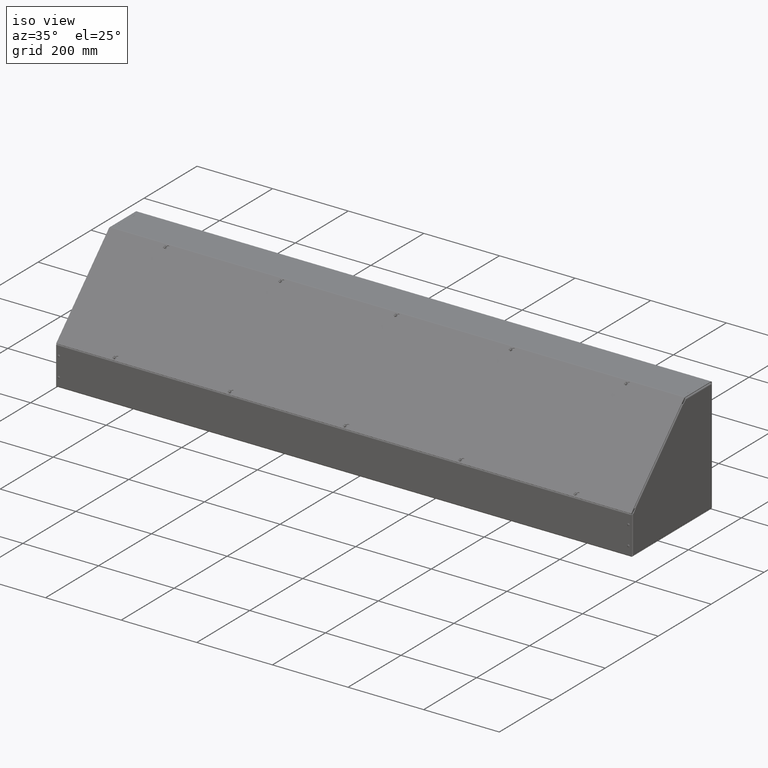
[diagram: clean part render]
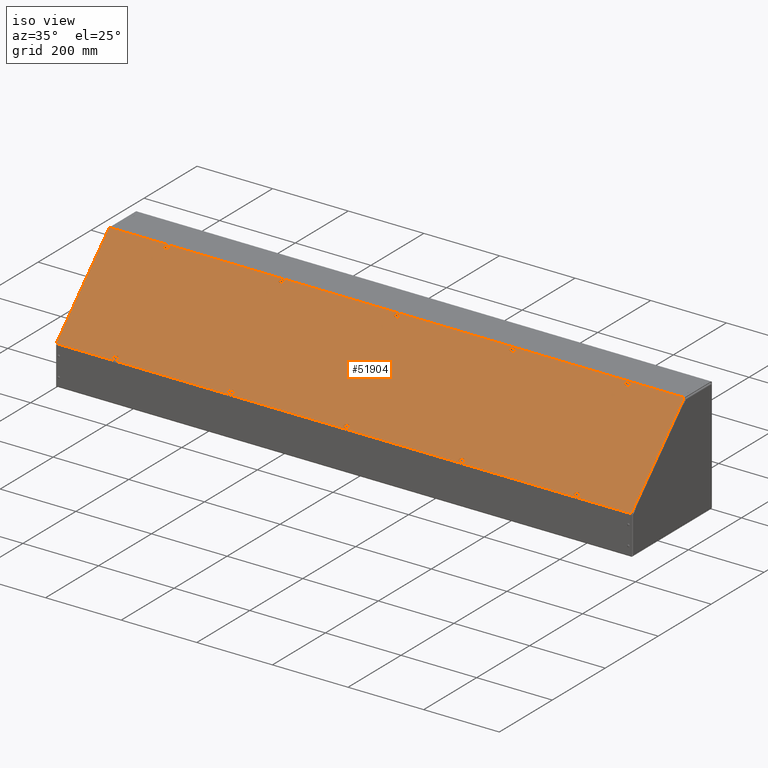
[diagram: same view with one face highlighted and labeled with its STEP entity id]
A machine part, iso view. The second image highlights one B-rep face of the part: STEP entity #51904.
In plain terms, the highlighted planar face has unit normal (-0, -0.7071, 0.7071).
Its self-contained STEP definition (entity closure, byte-faithful):
#48 = CIRCLE ( 'NONE', #75103, 0.2031250000000000000 ) ;
#491 = CARTESIAN_POINT ( 'NONE',  ( 12.06977238715531087, -5.539058563469402507, 1.295384249725091363 ) ) ;
#568 = VERTEX_POINT ( 'NONE', #69929 ) ;
#738 = CARTESIAN_POINT ( 'NONE',  ( -0.3833526128446846371, -5.461718759277108148, 1.372724053917378617 ) ) ;
#1892 = CARTESIAN_POINT ( 'NONE',  ( -12.30451591206507089, -5.616398367661648017, 1.218044445532832531 ) ) ;
#2135 = CARTESIAN_POINT ( 'NONE',  ( 11.69548408793492023, 1.896611182445426591, 8.731053995639825871 ) ) ;
#2218 = DIRECTION ( 'NONE',  ( 1.000000000000000000, 0.000000000000000000, 0.000000000000000000 ) ) ;
#2468 = CARTESIAN_POINT ( 'NONE',  ( -0.3045159120650409723, 1.896611182445442578, 8.731053995639834753 ) ) ;
#2536 = PLANE ( 'NONE',  #4278 ) ;
#2540 = LINE ( 'NONE', #69848, #107956 ) ;
#2823 = CARTESIAN_POINT ( 'NONE',  ( -0.4927276128446778092, 1.973950986637722060, 8.808393799832114013 ) ) ;
#3194 = DIRECTION ( 'NONE',  ( -1.000000000000000000, 0.000000000000000000, 0.000000000000000000 ) ) ;
#3256 = VERTEX_POINT ( 'NONE', #71480 ) ;
#3453 = LINE ( 'NONE', #71870, #71434 ) ;
#3525 = VERTEX_POINT ( 'NONE', #11920 ) ;
#4278 = AXIS2_PLACEMENT_3D ( 'NONE', #104416, #70977, #71512 ) ;
#4302 = CARTESIAN_POINT ( 'NONE',  ( -24.13335261284468558, -5.539058563469347440, 1.295384249725127557 ) ) ;
#4389 = ORIENTED_EDGE ( 'NONE', *, *, #64309, .T. ) ;
#4579 = DIRECTION ( 'NONE',  ( 3.660470676018199903E-16, 0.7071067811865430208, -0.7071067811865520136 ) ) ;
#4711 = VECTOR ( 'NONE', #23132, 39.37007874015748143 ) ;
#4789 = DIRECTION ( 'NONE',  ( 3.660470676018199903E-16, 0.7071067811865430208, -0.7071067811865520136 ) ) ;
#4916 = CARTESIAN_POINT ( 'NONE',  ( -0.3045159120650421936, 1.896611182445442578, 8.731053995639834753 ) ) ;
#5077 = EDGE_CURVE ( 'NONE', #29153, #53612, #103840, .T. ) ;
#5380 = CIRCLE ( 'NONE', #25021, 0.1093749999999986122 ) ;
#5490 = CARTESIAN_POINT ( 'NONE',  ( -12.13335261284468913, -5.539058563469370533, 1.295384249725110459 ) ) ;
#5494 = EDGE_CURVE ( 'NONE', #43933, #86162, #86589, .T. ) ;
#5627 = DIRECTION ( 'NONE',  ( 1.000000000000000000, 0.000000000000000000, 0.000000000000000000 ) ) ;
#5962 = EDGE_CURVE ( 'NONE', #98518, #10852, #71135, .T. ) ;
#6040 = VERTEX_POINT ( 'NONE', #51159 ) ;
#6110 = VERTEX_POINT ( 'NONE', #76613 ) ;
#6453 = CARTESIAN_POINT ( 'NONE',  ( 29.55414738715531087, -5.737932345678103729, 1.096510467516401022 ) ) ;
#6630 = EDGE_CURVE ( 'NONE', #47840, #6110, #84508, .T. ) ;
#6721 = CARTESIAN_POINT ( 'NONE',  ( 23.69548408793491134, -5.461718759277138346, 1.372724053917359965 ) ) ;
#6930 = VERTEX_POINT ( 'NONE', #58691 ) ;
#7148 = ORIENTED_EDGE ( 'NONE', *, *, #60162, .T. ) ;
#7261 = AXIS2_PLACEMENT_3D ( 'NONE', #89559, #38143, #19627 ) ;
#7280 = ORIENTED_EDGE ( 'NONE', *, *, #38841, .T. ) ;
#7681 = DIRECTION ( 'NONE',  ( -1.000000000000000000, 0.000000000000000000, 0.000000000000000000 ) ) ;
#7691 = DIRECTION ( 'NONE',  ( 3.660470676018199903E-16, 0.7071067811865430208, -0.7071067811865520136 ) ) ;
#7824 = VERTEX_POINT ( 'NONE', #31665 ) ;
#7967 = DIRECTION ( 'NONE',  ( -1.000000000000000000, 1.344909781496246912E-15, 0.000000000000000000 ) ) ;
#8057 = DIRECTION ( 'NONE',  ( 1.000000000000000000, -5.379639125985046023E-15, -5.379639125985046023E-15 ) ) ;
#8310 = DIRECTION ( 'NONE',  ( -1.000000000000000000, 1.344909781496261506E-15, 0.000000000000000000 ) ) ;
#8372 = CARTESIAN_POINT ( 'NONE',  ( 23.61664738715531797, 2.051290790829970678, 8.885733604024371957 ) ) ;
#8469 = DIRECTION ( 'NONE',  ( -1.000000000000000000, 0.000000000000000000, 0.000000000000000000 ) ) ;
#8722 = CARTESIAN_POINT ( 'NONE',  ( -0.3045159120650479667, -5.461718759277108148, 1.372724053917378617 ) ) ;
#8859 = CARTESIAN_POINT ( 'NONE',  ( -12.38335261284467848, 1.973950986637738048, 8.808393799832122895 ) ) ;
#8959 = DIRECTION ( 'NONE',  ( -1.000000000000000000, 0.000000000000000000, 0.000000000000000000 ) ) ;
#9019 = EDGE_CURVE ( 'NONE', #58988, #83399, #78856, .T. ) ;
#9497 = EDGE_CURVE ( 'NONE', #64758, #65760, #62072, .T. ) ;
#9529 = EDGE_CURVE ( 'NONE', #3525, #58988, #81598, .T. ) ;
#9946 = CARTESIAN_POINT ( 'NONE',  ( -24.30451591206508866, -5.461718759277068180, 1.372724053917405485 ) ) ;
#10043 = LINE ( 'NONE', #44248, #43904 ) ;
#10120 = VECTOR ( 'NONE', #82312, 39.37007874015748143 ) ;
#10694 = EDGE_CURVE ( 'NONE', #83130, #51317, #2540, .T. ) ;
#10759 = CIRCLE ( 'NONE', #105488, 0.2031250000000000000 ) ;
#10852 = VERTEX_POINT ( 'NONE', #56899 ) ;
#11351 = AXIS2_PLACEMENT_3D ( 'NONE', #93336, #43060, #101234 ) ;
#11601 = VECTOR ( 'NONE', #43364, 39.37007874015748143 ) ;
#11651 = CARTESIAN_POINT ( 'NONE',  ( -24.30451591206507800, 1.896611182445474331, 8.731053995639854293 ) ) ;
#11862 = CARTESIAN_POINT ( 'NONE',  ( -30.32085261284468558, -5.737932345678068202, 1.096510467516405907 ) ) ;
#11920 = CARTESIAN_POINT ( 'NONE',  ( -24.30451591206506023, 1.896611182445474331, 8.731053995639854293 ) ) ;
#12661 = DIRECTION ( 'NONE',  ( -1.000000000000000000, 1.344909781496261506E-15, 0.000000000000000000 ) ) ;
#13715 = CIRCLE ( 'NONE', #54846, 0.1093749999999999722 ) ;
#14122 = DIRECTION ( 'NONE',  ( 1.000000000000000000, -7.162930641981339240E-16, -1.986243367287331030E-16 ) ) ;
#14409 = ORIENTED_EDGE ( 'NONE', *, *, #41814, .F. ) ;
#14448 = ORIENTED_EDGE ( 'NONE', *, *, #93354, .F. ) ;
#14591 = DIRECTION ( 'NONE',  ( -1.000000000000000000, 7.162930641981339240E-16, 1.986243367287331030E-16 ) ) ;
#14633 = AXIS2_PLACEMENT_3D ( 'NONE', #100814, #50496, #8469 ) ;
#14795 = CARTESIAN_POINT ( 'NONE',  ( -12.38335261284467848, 2.051290790830016864, 8.885733604024400378 ) ) ;
#14982 = AXIS2_PLACEMENT_3D ( 'NONE', #57463, #4789, #12661 ) ;
#15824 = CARTESIAN_POINT ( 'NONE',  ( -24.49272761284467492, 1.973950986637753147, 8.808393799832131776 ) ) ;
#16071 = FACE_BOUND ( 'NONE', #91382, .T. ) ;
#16239 = CIRCLE ( 'NONE', #18061, 0.2031250000000008604 ) ;
#16243 = ORIENTED_EDGE ( 'NONE', *, *, #6630, .T. ) ;
#16625 = FACE_BOUND ( 'NONE', #54751, .T. ) ;
#16861 = CARTESIAN_POINT ( 'NONE',  ( -11.93022761284468913, -5.539058563469370533, 1.295384249725110459 ) ) ;
#16968 = CIRCLE ( 'NONE', #29526, 0.2031249999999986677 ) ;
#17528 = DIRECTION ( 'NONE',  ( -1.000000000000000000, 0.000000000000000000, 0.000000000000000000 ) ) ;
#17714 = DIRECTION ( 'NONE',  ( 1.000000000000000000, -7.162930641981339240E-16, -1.986243367287331030E-16 ) ) ;
#17835 = DIRECTION ( 'NONE',  ( 1.000000000000000000, -7.162930641981339240E-16, -1.986243367287331030E-16 ) ) ;
#18061 = AXIS2_PLACEMENT_3D ( 'NONE', #110574, #32269, #23291 ) ;
#18206 = DIRECTION ( 'NONE',  ( 3.660470676018199903E-16, 0.7071067811865430208, -0.7071067811865520136 ) ) ;
#18370 = EDGE_CURVE ( 'NONE', #105975, #73744, #82416, .T. ) ;
#18428 = ORIENTED_EDGE ( 'NONE', *, *, #25028, .T. ) ;
#18599 = CARTESIAN_POINT ( 'NONE',  ( -0.1333526128446756442, 1.973950986637722060, 8.808393799832114013 ) ) ;
#18831 = EDGE_CURVE ( 'NONE', #24332, #51317, #98606, .T. ) ;
#18902 = CARTESIAN_POINT ( 'NONE',  ( -12.30451591206507089, -5.461718759277090385, 1.372724053917388387 ) ) ;
#19370 = VERTEX_POINT ( 'NONE', #491 ) ;
#19486 = CARTESIAN_POINT ( 'NONE',  ( 11.61664738715531797, 1.973950986637706739, 8.808393799832105131 ) ) ;
#19608 = DIRECTION ( 'NONE',  ( 1.000000000000000000, -5.379639125985046023E-15, -5.379639125985046023E-15 ) ) ;
#19627 = DIRECTION ( 'NONE',  ( 1.000000000000000000, 0.000000000000000000, 0.000000000000000000 ) ) ;
#20215 = ORIENTED_EDGE ( 'NONE', *, *, #60519, .T. ) ;
#20346 = EDGE_CURVE ( 'NONE', #83399, #98826, #48650, .T. ) ;
#20421 = FACE_BOUND ( 'NONE', #76073, .T. ) ;
#20423 = ORIENTED_EDGE ( 'NONE', *, *, #18831, .T. ) ;
#20491 = EDGE_CURVE ( 'NONE', #65630, #3256, #21799, .T. ) ;
#21051 = DIRECTION ( 'NONE',  ( 1.000000000000000000, -7.162930641981339240E-16, -1.986243367287331030E-16 ) ) ;
#21168 = ORIENTED_EDGE ( 'NONE', *, *, #10694, .F. ) ;
#21479 = EDGE_CURVE ( 'NONE', #48153, #65630, #88357, .T. ) ;
#21746 = EDGE_CURVE ( 'NONE', #65602, #69655, #27013, .T. ) ;
#21799 = LINE ( 'NONE', #48192, #55930 ) ;
#22359 = VERTEX_POINT ( 'NONE', #94873 ) ;
#22800 = VERTEX_POINT ( 'NONE', #78744 ) ;
#22881 = EDGE_CURVE ( 'NONE', #22800, #82640, #33986, .T. ) ;
#23132 = DIRECTION ( 'NONE',  ( 1.000000000000000000, -5.345915056832844954E-16, -1.692277821388596705E-17 ) ) ;
#23157 = CARTESIAN_POINT ( 'NONE',  ( -12.30451591206506201, 1.896611182445458343, 8.731053995639843635 ) ) ;
#23291 = DIRECTION ( 'NONE',  ( 1.000000000000000000, 0.000000000000000000, -1.344909781496246912E-15 ) ) ;
#23354 = CARTESIAN_POINT ( 'NONE',  ( 11.50727238715531797, 1.973950986637706739, 8.808393799832105131 ) ) ;
#23430 = CIRCLE ( 'NONE', #98497, 0.2031250000000008604 ) ;
#23457 = LINE ( 'NONE', #91744, #10120 ) ;
#23474 = ORIENTED_EDGE ( 'NONE', *, *, #41838, .T. ) ;
#23873 = VECTOR ( 'NONE', #57425, 39.37007874015748143 ) ;
#24150 = CIRCLE ( 'NONE', #99225, 0.1093749999999986122 ) ;
#24208 = ORIENTED_EDGE ( 'NONE', *, *, #25124, .T. ) ;
#24332 = VERTEX_POINT ( 'NONE', #30825 ) ;
#24442 = VERTEX_POINT ( 'NONE', #108061 ) ;
#24529 = CARTESIAN_POINT ( 'NONE',  ( -24.13335261284467848, 1.973950986637753147, 8.808393799832131776 ) ) ;
#24571 = CARTESIAN_POINT ( 'NONE',  ( -24.38335261284467492, 1.896611182445474331, 8.731053995639854293 ) ) ;
#24671 = EDGE_CURVE ( 'NONE', #73744, #78848, #73948, .T. ) ;
#24990 = EDGE_LOOP ( 'NONE', ( #73040, #38320, #104484, #30809 ) ) ;
#25021 = AXIS2_PLACEMENT_3D ( 'NONE', #73007, #4579, #39384 ) ;
#25028 = EDGE_CURVE ( 'NONE', #82640, #40484, #70441, .T. ) ;
#25124 = EDGE_CURVE ( 'NONE', #58628, #86248, #31022, .T. ) ;
#25275 = ORIENTED_EDGE ( 'NONE', *, *, #73922, .T. ) ;
#25314 = ORIENTED_EDGE ( 'NONE', *, *, #44583, .F. ) ;
#25327 = VECTOR ( 'NONE', #17835, 39.37007874015748143 ) ;
#25628 = DIRECTION ( 'NONE',  ( -1.000000000000000000, 0.000000000000000000, 0.000000000000000000 ) ) ;
#25874 = CARTESIAN_POINT ( 'NONE',  ( 23.61664738715531797, 1.973950986637691418, 8.808393799832094473 ) ) ;
#26260 = CARTESIAN_POINT ( 'NONE',  ( -12.38335261284467848, 1.973950986637738048, 8.808393799832122895 ) ) ;
#26884 = ORIENTED_EDGE ( 'NONE', *, *, #77143, .T. ) ;
#27013 = LINE ( 'NONE', #62350, #11601 ) ;
#27163 = CARTESIAN_POINT ( 'NONE',  ( 11.61664738715531797, 1.896611182445426591, 8.731053995639825871 ) ) ;
#27435 = DIRECTION ( 'NONE',  ( 3.660470676018199903E-16, 0.7071067811865430208, -0.7071067811865520136 ) ) ;
#27866 = VECTOR ( 'NONE', #79276, 39.37007874015748143 ) ;
#28187 = LINE ( 'NONE', #62386, #53791 ) ;
#28196 = ORIENTED_EDGE ( 'NONE', *, *, #5494, .F. ) ;
#28273 = CARTESIAN_POINT ( 'NONE',  ( -0.3833526128446848036, -5.616398367661664892, 1.218044445532822762 ) ) ;
#28412 = DIRECTION ( 'NONE',  ( 1.000000000000000000, 0.000000000000000000, -1.344909781496261506E-15 ) ) ;
#28421 = DIRECTION ( 'NONE',  ( -1.000000000000000000, 7.162930641981339240E-16, 1.986243367287331030E-16 ) ) ;
#28872 = VERTEX_POINT ( 'NONE', #77751 ) ;
#28898 = LINE ( 'NONE', #61437, #97916 ) ;
#28932 = AXIS2_PLACEMENT_3D ( 'NONE', #4302, #38546, #28412 ) ;
#29153 = VERTEX_POINT ( 'NONE', #27163 ) ;
#29526 = AXIS2_PLACEMENT_3D ( 'NONE', #50241, #92660, #33953 ) ;
#29527 = CIRCLE ( 'NONE', #72523, 0.1093749999999999722 ) ;
#29534 = DIRECTION ( 'NONE',  ( 3.660470676018199903E-16, 0.7071067811865430208, -0.7071067811865520136 ) ) ;
#29958 = AXIS2_PLACEMENT_3D ( 'NONE', #26260, #50427, #76716 ) ;
#29989 = EDGE_LOOP ( 'NONE', ( #70968, #70199, #14448, #83909, #25275 ) ) ;
#30500 = CARTESIAN_POINT ( 'NONE',  ( 11.69548408793491134, -5.461718759277123247, 1.372724053917369291 ) ) ;
#30809 = ORIENTED_EDGE ( 'NONE', *, *, #100468, .F. ) ;
#30825 = CARTESIAN_POINT ( 'NONE',  ( -23.93022761284468558, -5.539058563469347440, 1.295384249725127557 ) ) ;
#30874 = VECTOR ( 'NONE', #96967, 39.37007874015748143 ) ;
#30887 = DIRECTION ( 'NONE',  ( -1.000000000000000000, 0.000000000000000000, 0.000000000000000000 ) ) ;
#31022 = CIRCLE ( 'NONE', #104291, 0.1093750000000007910 ) ;
#31115 = VERTEX_POINT ( 'NONE', #63262 ) ;
#31421 = DIRECTION ( 'NONE',  ( 3.660470676018199903E-16, 0.7071067811865430208, -0.7071067811865520136 ) ) ;
#31665 = CARTESIAN_POINT ( 'NONE',  ( 23.69548408793492911, -5.616398367661696867, 1.218044445532804110 ) ) ;
#32049 = ORIENTED_EDGE ( 'NONE', *, *, #51646, .T. ) ;
#32269 = DIRECTION ( 'NONE',  ( 3.660470676018199903E-16, 0.7071067811865430208, -0.7071067811865520136 ) ) ;
#33415 = FACE_BOUND ( 'NONE', #85656, .T. ) ;
#33459 = ORIENTED_EDGE ( 'NONE', *, *, #18370, .T. ) ;
#33928 = CARTESIAN_POINT ( 'NONE',  ( -12.13335261284468913, -5.539058563469370533, 1.295384249725110459 ) ) ;
#33953 = DIRECTION ( 'NONE',  ( 1.000000000000000000, 0.000000000000000000, -1.344909781496261506E-15 ) ) ;
#33986 = LINE ( 'NONE', #70988, #27866 ) ;
#34111 = EDGE_LOOP ( 'NONE', ( #14409, #46053, #58837, #23474, #26884 ) ) ;
#34293 = VECTOR ( 'NONE', #44153, 39.37007874015748143 ) ;
#34423 = AXIS2_PLACEMENT_3D ( 'NONE', #63778, #80551, #106223 ) ;
#34987 = CIRCLE ( 'NONE', #45707, 0.1093749999999986122 ) ;
#35208 = CARTESIAN_POINT ( 'NONE',  ( 11.61664738715530909, -5.616398367661680879, 1.218044445532813436 ) ) ;
#35385 = ORIENTED_EDGE ( 'NONE', *, *, #57271, .T. ) ;
#36633 = LINE ( 'NONE', #77507, #30874 ) ;
#37354 = VERTEX_POINT ( 'NONE', #43029 ) ;
#37888 = VECTOR ( 'NONE', #28421, 39.37007874015748143 ) ;
#38103 = DIRECTION ( 'NONE',  ( -1.000000000000000000, 0.000000000000000000, 0.000000000000000000 ) ) ;
#38143 = DIRECTION ( 'NONE',  ( 3.660470676018199903E-16, 0.7071067811865430208, -0.7071067811865520136 ) ) ;
#38317 = ORIENTED_EDGE ( 'NONE', *, *, #9529, .T. ) ;
#38320 = ORIENTED_EDGE ( 'NONE', *, *, #104422, .F. ) ;
#38396 = EDGE_CURVE ( 'NONE', #52071, #77815, #29527, .T. ) ;
#38546 = DIRECTION ( 'NONE',  ( 3.660470676018199903E-16, 0.7071067811865430208, -0.7071067811865520136 ) ) ;
#38566 = ORIENTED_EDGE ( 'NONE', *, *, #5962, .T. ) ;
#38841 = EDGE_CURVE ( 'NONE', #10852, #47840, #34987, .T. ) ;
#39118 = CARTESIAN_POINT ( 'NONE',  ( 29.55414738715530731, -5.737932345678108170, 1.096510467516397247 ) ) ;
#39209 = ORIENTED_EDGE ( 'NONE', *, *, #106814, .T. ) ;
#39384 = DIRECTION ( 'NONE',  ( 1.000000000000000000, 0.000000000000000000, 0.000000000000000000 ) ) ;
#39450 = VECTOR ( 'NONE', #14122, 39.37007874015748143 ) ;
#40290 = DIRECTION ( 'NONE',  ( 3.660470676018199903E-16, 0.7071067811865430208, -0.7071067811865520136 ) ) ;
#40484 = VERTEX_POINT ( 'NONE', #2468 ) ;
#40697 = DIRECTION ( 'NONE',  ( -1.000000000000000000, 6.171831231900343164E-16, 9.951439572063472796E-17 ) ) ;
#40847 = AXIS2_PLACEMENT_3D ( 'NONE', #61645, #104671, #19608 ) ;
#41563 = CIRCLE ( 'NONE', #34423, 0.2031250000000008604 ) ;
#41814 = EDGE_CURVE ( 'NONE', #31115, #81118, #61925, .T. ) ;
#41838 = EDGE_CURVE ( 'NONE', #102885, #568, #48, .T. ) ;
#41937 = DIRECTION ( 'NONE',  ( 1.000000000000000000, 0.000000000000000000, -1.344909781496246912E-15 ) ) ;
#42005 = ORIENTED_EDGE ( 'NONE', *, *, #47174, .T. ) ;
#42129 = ORIENTED_EDGE ( 'NONE', *, *, #49215, .T. ) ;
#42171 = ORIENTED_EDGE ( 'NONE', *, *, #9497, .F. ) ;
#42539 = DIRECTION ( 'NONE',  ( 3.660470676018199903E-16, 0.7071067811865430208, -0.7071067811865520136 ) ) ;
#42562 = EDGE_CURVE ( 'NONE', #24442, #72624, #23430, .T. ) ;
#42769 = VERTEX_POINT ( 'NONE', #738 ) ;
#43029 = CARTESIAN_POINT ( 'NONE',  ( -12.38335261284467848, 1.896611182445458343, 8.731053995639843635 ) ) ;
#43060 = DIRECTION ( 'NONE',  ( 3.660470676018199903E-16, 0.7071067811865430208, -0.7071067811865520136 ) ) ;
#43107 = ORIENTED_EDGE ( 'NONE', *, *, #20491, .T. ) ;
#43364 = DIRECTION ( 'NONE',  ( -1.647136421956051447E-15, -0.7071067811865520136, -0.7071067811865430208 ) ) ;
#43389 = CARTESIAN_POINT ( 'NONE',  ( -0.3833526128446779202, 1.896611182445442578, 8.731053995639834753 ) ) ;
#43561 = EDGE_LOOP ( 'NONE', ( #74810, #90365, #53907, #51275, #32049 ) ) ;
#43624 = AXIS2_PLACEMENT_3D ( 'NONE', #19486, #53701, #105640 ) ;
#43904 = VECTOR ( 'NONE', #70563, 39.37007874015748143 ) ;
#43933 = VERTEX_POINT ( 'NONE', #53673 ) ;
#44153 = DIRECTION ( 'NONE',  ( -1.000000000000000000, 7.162930641981339240E-16, 1.986243367287331030E-16 ) ) ;
#44248 = CARTESIAN_POINT ( 'NONE',  ( 23.69548408793492200, 1.896611182445411492, 8.731053995639816989 ) ) ;
#44578 = CARTESIAN_POINT ( 'NONE',  ( 11.61664738715530909, -5.616398367661680879, 1.218044445532813436 ) ) ;
#44583 = EDGE_CURVE ( 'NONE', #76996, #65711, #99882, .T. ) ;
#44762 = CARTESIAN_POINT ( 'NONE',  ( -24.38335261284468558, -5.616398367661626700, 1.218044445532849629 ) ) ;
#45009 = VECTOR ( 'NONE', #98371, 39.37007874015748143 ) ;
#45163 = FACE_BOUND ( 'NONE', #43561, .T. ) ;
#45165 = CIRCLE ( 'NONE', #107638, 0.2031249999999986677 ) ;
#45381 = DIRECTION ( 'NONE',  ( 3.660470676018199903E-16, 0.7071067811865430208, -0.7071067811865520136 ) ) ;
#45707 = AXIS2_PLACEMENT_3D ( 'NONE', #106729, #29534, #3194 ) ;
#46053 = ORIENTED_EDGE ( 'NONE', *, *, #61683, .T. ) ;
#46111 = EDGE_CURVE ( 'NONE', #6040, #24442, #23457, .T. ) ;
#46356 = EDGE_CURVE ( 'NONE', #6930, #98518, #10043, .T. ) ;
#46493 = EDGE_CURVE ( 'NONE', #40484, #52071, #57052, .T. ) ;
#46514 = VECTOR ( 'NONE', #105478, 39.37007874015748143 ) ;
#46757 = ORIENTED_EDGE ( 'NONE', *, *, #102531, .T. ) ;
#47174 = EDGE_CURVE ( 'NONE', #77815, #22800, #13715, .T. ) ;
#47840 = VERTEX_POINT ( 'NONE', #61320 ) ;
#48153 = VERTEX_POINT ( 'NONE', #83480 ) ;
#48192 = CARTESIAN_POINT ( 'NONE',  ( -12.38335261284467848, 2.051290790830016864, 8.885733604024400378 ) ) ;
#48650 = CIRCLE ( 'NONE', #14633, 0.1093749999999986122 ) ;
#48852 = DIRECTION ( 'NONE',  ( 3.660470676018199903E-16, 0.7071067811865430208, -0.7071067811865520136 ) ) ;
#49102 = ORIENTED_EDGE ( 'NONE', *, *, #83948, .T. ) ;
#49215 = EDGE_CURVE ( 'NONE', #64758, #65711, #105527, .T. ) ;
#50140 = CARTESIAN_POINT ( 'NONE',  ( -24.13335261284468558, -5.539058563469347440, 1.295384249725127557 ) ) ;
#50241 = CARTESIAN_POINT ( 'NONE',  ( 23.86664738715531442, -5.539058563469417606, 1.295384249725082038 ) ) ;
#50333 = ORIENTED_EDGE ( 'NONE', *, *, #79433, .T. ) ;
#50427 = DIRECTION ( 'NONE',  ( 3.660470676018199903E-16, 0.7071067811865430208, -0.7071067811865520136 ) ) ;
#50496 = DIRECTION ( 'NONE',  ( 3.660470676018199903E-16, 0.7071067811865430208, -0.7071067811865520136 ) ) ;
#50524 = CARTESIAN_POINT ( 'NONE',  ( -24.38335261284468558, -5.461718759277068180, 1.372724053917405485 ) ) ;
#50792 = CIRCLE ( 'NONE', #43624, 0.1093750000000007910 ) ;
#50911 = DIRECTION ( 'NONE',  ( 3.660470676018199903E-16, 0.7071067811865430208, -0.7071067811865520136 ) ) ;
#51159 = CARTESIAN_POINT ( 'NONE',  ( 11.61664738715531797, 2.051290790829985333, 8.885733604024382615 ) ) ;
#51275 = ORIENTED_EDGE ( 'NONE', *, *, #5077, .T. ) ;
#51317 = VERTEX_POINT ( 'NONE', #58568 ) ;
#51560 = DIRECTION ( 'NONE',  ( 3.660470676018199903E-16, 0.7071067811865430208, -0.7071067811865520136 ) ) ;
#51646 = EDGE_CURVE ( 'NONE', #53612, #6040, #50792, .T. ) ;
#51775 = ORIENTED_EDGE ( 'NONE', *, *, #78892, .T. ) ;
#51904 = ADVANCED_FACE ( 'NONE', ( #33415, #16071, #16625, #20421, #70394, #45163, #79270, #62500, #55238, #97646, #80920 ), #2536, .T. ) ;
#52071 = VERTEX_POINT ( 'NONE', #43389 ) ;
#52651 = VECTOR ( 'NONE', #14591, 39.37007874015748143 ) ;
#52823 = VECTOR ( 'NONE', #88917, 39.37007874015748143 ) ;
#53612 = VERTEX_POINT ( 'NONE', #23354 ) ;
#53673 = CARTESIAN_POINT ( 'NONE',  ( -24.30451591206507089, -5.461718759277068180, 1.372724053917405485 ) ) ;
#53701 = DIRECTION ( 'NONE',  ( 3.660470676018199903E-16, 0.7071067811865430208, -0.7071067811865520136 ) ) ;
#53791 = VECTOR ( 'NONE', #85886, 39.37007874015748143 ) ;
#53904 = CARTESIAN_POINT ( 'NONE',  ( -0.3045159120650467455, -5.616398367661664892, 1.218044445532822762 ) ) ;
#53907 = ORIENTED_EDGE ( 'NONE', *, *, #78196, .T. ) ;
#54149 = ORIENTED_EDGE ( 'NONE', *, *, #78672, .T. ) ;
#54751 = EDGE_LOOP ( 'NONE', ( #16243, #50333, #67405, #38566, #7280 ) ) ;
#54781 = EDGE_LOOP ( 'NONE', ( #95309, #18428, #57085, #63875, #42005 ) ) ;
#54846 = AXIS2_PLACEMENT_3D ( 'NONE', #73875, #40290, #7681 ) ;
#55238 = FACE_BOUND ( 'NONE', #87260, .T. ) ;
#55344 = CIRCLE ( 'NONE', #60677, 0.1093749999999999722 ) ;
#55930 = VECTOR ( 'NONE', #106326, 39.37007874015748143 ) ;
#56899 = CARTESIAN_POINT ( 'NONE',  ( 23.50727238715532152, 1.973950986637691418, 8.808393799832094473 ) ) ;
#57052 = LINE ( 'NONE', #4916, #52823 ) ;
#57085 = ORIENTED_EDGE ( 'NONE', *, *, #46493, .T. ) ;
#57271 = EDGE_CURVE ( 'NONE', #76996, #19370, #59662, .T. ) ;
#57425 = DIRECTION ( 'NONE',  ( -1.000000000000000000, 7.162930641981339240E-16, 1.986243367287331030E-16 ) ) ;
#57452 = CARTESIAN_POINT ( 'NONE',  ( -24.30451591206504958, 2.051290790830026634, 8.885733604024405707 ) ) ;
#57463 = CARTESIAN_POINT ( 'NONE',  ( 23.86664738715532152, 1.973950986637690974, 8.808393799832094473 ) ) ;
#58541 = DIRECTION ( 'NONE',  ( 3.660470676018199903E-16, 0.7071067811865430208, -0.7071067811865520136 ) ) ;
#58568 = CARTESIAN_POINT ( 'NONE',  ( -24.30451591206506379, -5.616398367661627589, 1.218044445532848519 ) ) ;
#58628 = VERTEX_POINT ( 'NONE', #66910 ) ;
#58691 = CARTESIAN_POINT ( 'NONE',  ( 23.69548408793493977, 1.896611182445411492, 8.731053995639816989 ) ) ;
#58837 = ORIENTED_EDGE ( 'NONE', *, *, #73589, .F. ) ;
#58988 = VERTEX_POINT ( 'NONE', #24571 ) ;
#59662 = CIRCLE ( 'NONE', #11351, 0.2031250000000008604 ) ;
#59687 = AXIS2_PLACEMENT_3D ( 'NONE', #18599, #96338, #87971 ) ;
#60162 = EDGE_CURVE ( 'NONE', #37354, #48153, #76482, .T. ) ;
#60519 = EDGE_CURVE ( 'NONE', #98826, #97508, #28898, .T. ) ;
#60677 = AXIS2_PLACEMENT_3D ( 'NONE', #81144, #88412, #2218 ) ;
#61320 = CARTESIAN_POINT ( 'NONE',  ( 23.61664738715531797, 2.051290790829970678, 8.885733604024371957 ) ) ;
#61437 = CARTESIAN_POINT ( 'NONE',  ( -24.38335261284467492, 2.051290790830032851, 8.885733604024411036 ) ) ;
#61600 = EDGE_CURVE ( 'NONE', #105975, #86248, #3453, .T. ) ;
#61645 = CARTESIAN_POINT ( 'NONE',  ( 23.86664738715531442, -5.539058563469417606, 1.295384249725082038 ) ) ;
#61683 = EDGE_CURVE ( 'NONE', #31115, #42769, #55344, .T. ) ;
#61925 = LINE ( 'NONE', #28273, #46514 ) ;
#62072 = LINE ( 'NONE', #35208, #25327 ) ;
#62260 = EDGE_CURVE ( 'NONE', #110338, #67080, #5380, .T. ) ;
#62350 = CARTESIAN_POINT ( 'NONE',  ( 29.55414738715532152, 2.172824768846446819, 9.007267582040849874 ) ) ;
#62386 = CARTESIAN_POINT ( 'NONE',  ( -12.38335261284468736, -5.616398367661648017, 1.218044445532832531 ) ) ;
#62395 = EDGE_CURVE ( 'NONE', #110338, #7824, #109189, .T. ) ;
#62500 = FACE_BOUND ( 'NONE', #34111, .T. ) ;
#62773 = CARTESIAN_POINT ( 'NONE',  ( -12.38335261284468736, -5.461718759277090385, 1.372724053917388387 ) ) ;
#63262 = CARTESIAN_POINT ( 'NONE',  ( -0.3833526128446848036, -5.616398367661664892, 1.218044445532822762 ) ) ;
#63352 = VECTOR ( 'NONE', #104795, 39.37007874015748143 ) ;
#63778 = CARTESIAN_POINT ( 'NONE',  ( -12.13335261284468025, 1.973950986637737381, 8.808393799832122895 ) ) ;
#63875 = ORIENTED_EDGE ( 'NONE', *, *, #38396, .T. ) ;
#64136 = DIRECTION ( 'NONE',  ( 1.000000000000000000, -5.379639125985010524E-15, -4.034729344488758288E-15 ) ) ;
#64309 = EDGE_CURVE ( 'NONE', #83130, #86162, #24150, .T. ) ;
#64548 = LINE ( 'NONE', #70793, #63352 ) ;
#64758 = VERTEX_POINT ( 'NONE', #44578 ) ;
#65602 = VERTEX_POINT ( 'NONE', #84739 ) ;
#65630 = VERTEX_POINT ( 'NONE', #14795 ) ;
#65711 = VERTEX_POINT ( 'NONE', #101958 ) ;
#65760 = VERTEX_POINT ( 'NONE', #70684 ) ;
#66752 = AXIS2_PLACEMENT_3D ( 'NONE', #5490, #7691, #41937 ) ;
#66910 = CARTESIAN_POINT ( 'NONE',  ( -12.38335261284468736, -5.616398367661648017, 1.218044445532832531 ) ) ;
#67080 = VERTEX_POINT ( 'NONE', #88771 ) ;
#67318 = CARTESIAN_POINT ( 'NONE',  ( 11.69548408793492911, -5.461718759277123247, 1.372724053917369291 ) ) ;
#67345 = CARTESIAN_POINT ( 'NONE',  ( -0.3045159120650401396, 2.051290790830001320, 8.885733604024391497 ) ) ;
#67405 = ORIENTED_EDGE ( 'NONE', *, *, #46356, .T. ) ;
#68127 = DIRECTION ( 'NONE',  ( 1.000000000000000000, 0.000000000000000000, 1.344909781496246912E-15 ) ) ;
#68502 = CARTESIAN_POINT ( 'NONE',  ( 11.86664738715531975, 1.973950986637706739, 8.808393799832105131 ) ) ;
#68999 = CARTESIAN_POINT ( 'NONE',  ( -0.1333526128446825554, -5.539058563469385632, 1.295384249725100689 ) ) ;
#69095 = CARTESIAN_POINT ( 'NONE',  ( -12.38335261284468736, -5.539058563469369645, 1.295384249725110459 ) ) ;
#69655 = VERTEX_POINT ( 'NONE', #39118 ) ;
#69845 = CARTESIAN_POINT ( 'NONE',  ( 23.61664738715531797, 1.896611182445411936, 8.731053995639816989 ) ) ;
#69848 = CARTESIAN_POINT ( 'NONE',  ( -24.38335261284468558, -5.616398367661627589, 1.218044445532848519 ) ) ;
#69929 = CARTESIAN_POINT ( 'NONE',  ( 0.06977238715531745850, -5.539058563469385632, 1.295384249725100689 ) ) ;
#69952 = AXIS2_PLACEMENT_3D ( 'NONE', #33928, #18206, #68127 ) ;
#70199 = ORIENTED_EDGE ( 'NONE', *, *, #62260, .T. ) ;
#70394 = FACE_BOUND ( 'NONE', #54781, .T. ) ;
#70441 = CIRCLE ( 'NONE', #59687, 0.2031250000000000278 ) ;
#70563 = DIRECTION ( 'NONE',  ( -1.000000000000000000, 7.162930641981339240E-16, 1.986243367287331030E-16 ) ) ;
#70684 = CARTESIAN_POINT ( 'NONE',  ( 11.69548408793492911, -5.616398367661680879, 1.218044445532813436 ) ) ;
#70707 = VERTEX_POINT ( 'NONE', #77546 ) ;
#70793 = CARTESIAN_POINT ( 'NONE',  ( -0.3045159120650489659, -5.461718759277108148, 1.372724053917378617 ) ) ;
#70968 = ORIENTED_EDGE ( 'NONE', *, *, #62395, .F. ) ;
#70977 = DIRECTION ( 'NONE',  ( -3.660470676018199903E-16, -0.7071067811865430208, 0.7071067811865520136 ) ) ;
#70988 = CARTESIAN_POINT ( 'NONE',  ( -0.3833526128446777537, 2.051290790830001320, 8.885733604024391497 ) ) ;
#71100 = ORIENTED_EDGE ( 'NONE', *, *, #91221, .F. ) ;
#71135 = CIRCLE ( 'NONE', #97824, 0.1093749999999986122 ) ;
#71434 = VECTOR ( 'NONE', #105868, 39.37007874015748143 ) ;
#71480 = CARTESIAN_POINT ( 'NONE',  ( -12.30451591206505135, 2.051290790830011534, 8.885733604024395049 ) ) ;
#71512 = DIRECTION ( 'NONE',  ( 1.000000000000000000, -7.162930641981339240E-16, -1.986243367287331030E-16 ) ) ;
#71728 = CARTESIAN_POINT ( 'NONE',  ( 11.69548408793493799, 1.896611182445426591, 8.731053995639825871 ) ) ;
#71870 = CARTESIAN_POINT ( 'NONE',  ( -12.30451591206508866, -5.461718759277090385, 1.372724053917388387 ) ) ;
#72523 = AXIS2_PLACEMENT_3D ( 'NONE', #73402, #97319, #38103 ) ;
#72624 = VERTEX_POINT ( 'NONE', #71728 ) ;
#73007 = CARTESIAN_POINT ( 'NONE',  ( 23.61664738715531087, -5.539058563469417606, 1.295384249725082038 ) ) ;
#73040 = ORIENTED_EDGE ( 'NONE', *, *, #21746, .F. ) ;
#73402 = CARTESIAN_POINT ( 'NONE',  ( -0.3833526128446778092, 1.973950986637722060, 8.808393799832114013 ) ) ;
#73589 = EDGE_CURVE ( 'NONE', #102885, #42769, #64548, .T. ) ;
#73744 = VERTEX_POINT ( 'NONE', #16861 ) ;
#73875 = CARTESIAN_POINT ( 'NONE',  ( -0.3833526128446778092, 1.973950986637722060, 8.808393799832114013 ) ) ;
#73922 = EDGE_CURVE ( 'NONE', #22359, #7824, #16968, .T. ) ;
#73948 = CIRCLE ( 'NONE', #66752, 0.2031250000000008604 ) ;
#74810 = ORIENTED_EDGE ( 'NONE', *, *, #46111, .T. ) ;
#75103 = AXIS2_PLACEMENT_3D ( 'NONE', #107146, #81991, #64136 ) ;
#75668 = CARTESIAN_POINT ( 'NONE',  ( -24.38335261284468558, -5.539058563469347440, 1.295384249725127557 ) ) ;
#76073 = EDGE_LOOP ( 'NONE', ( #43107, #49102, #51775, #7148, #98141 ) ) ;
#76482 = CIRCLE ( 'NONE', #29958, 0.1093750000000007910 ) ;
#76613 = CARTESIAN_POINT ( 'NONE',  ( 23.69548408793495042, 2.051290790829963573, 8.885733604024366628 ) ) ;
#76716 = DIRECTION ( 'NONE',  ( -1.000000000000000000, 0.000000000000000000, 0.000000000000000000 ) ) ;
#76996 = VERTEX_POINT ( 'NONE', #67318 ) ;
#77112 = AXIS2_PLACEMENT_3D ( 'NONE', #93435, #51560, #8959 ) ;
#77143 = EDGE_CURVE ( 'NONE', #568, #81118, #10759, .T. ) ;
#77507 = CARTESIAN_POINT ( 'NONE',  ( -12.30451591206507977, 1.896611182445458343, 8.731053995639843635 ) ) ;
#77546 = CARTESIAN_POINT ( 'NONE',  ( -30.32085261284467492, 2.172824768846482346, 9.007267582040855203 ) ) ;
#77734 = AXIS2_PLACEMENT_3D ( 'NONE', #24529, #42539, #8310 ) ;
#77751 = CARTESIAN_POINT ( 'NONE',  ( 23.69548408793492911, -5.461718759277138346, 1.372724053917359965 ) ) ;
#77792 = VECTOR ( 'NONE', #85313, 39.37007874015748143 ) ;
#77815 = VERTEX_POINT ( 'NONE', #2823 ) ;
#78196 = EDGE_CURVE ( 'NONE', #72624, #29153, #87229, .T. ) ;
#78672 = EDGE_CURVE ( 'NONE', #43933, #24332, #45165, .T. ) ;
#78744 = CARTESIAN_POINT ( 'NONE',  ( -0.3833526128446777537, 2.051290790830001320, 8.885733604024391497 ) ) ;
#78848 = VERTEX_POINT ( 'NONE', #1892 ) ;
#78856 = CIRCLE ( 'NONE', #102071, 0.1093749999999986122 ) ;
#78892 = EDGE_CURVE ( 'NONE', #85225, #37354, #36633, .T. ) ;
#79270 = FACE_BOUND ( 'NONE', #95231, .T. ) ;
#79276 = DIRECTION ( 'NONE',  ( 1.000000000000000000, -7.162930641981339240E-16, -1.986243367287331030E-16 ) ) ;
#79433 = EDGE_CURVE ( 'NONE', #6110, #6930, #107881, .T. ) ;
#80551 = DIRECTION ( 'NONE',  ( 3.660470676018199903E-16, 0.7071067811865430208, -0.7071067811865520136 ) ) ;
#80920 = FACE_OUTER_BOUND ( 'NONE', #24990, .T. ) ;
#81118 = VERTEX_POINT ( 'NONE', #53904 ) ;
#81144 = CARTESIAN_POINT ( 'NONE',  ( -0.3833526128446847481, -5.539058563469385632, 1.295384249725100689 ) ) ;
#81194 = AXIS2_PLACEMENT_3D ( 'NONE', #8859, #50911, #25628 ) ;
#81598 = LINE ( 'NONE', #11651, #37888 ) ;
#81991 = DIRECTION ( 'NONE',  ( 3.660470676018199903E-16, 0.7071067811865430208, -0.7071067811865520136 ) ) ;
#82312 = DIRECTION ( 'NONE',  ( 1.000000000000000000, -7.162930641981339240E-16, -1.986243367287331030E-16 ) ) ;
#82416 = CIRCLE ( 'NONE', #69952, 0.2031250000000008604 ) ;
#82640 = VERTEX_POINT ( 'NONE', #67345 ) ;
#83130 = VERTEX_POINT ( 'NONE', #44762 ) ;
#83141 = LINE ( 'NONE', #6453, #83461 ) ;
#83399 = VERTEX_POINT ( 'NONE', #15824 ) ;
#83461 = VECTOR ( 'NONE', #40697, 39.37007874015748143 ) ;
#83480 = CARTESIAN_POINT ( 'NONE',  ( -12.49272761284468025, 1.973950986637738048, 8.808393799832122895 ) ) ;
#83909 = ORIENTED_EDGE ( 'NONE', *, *, #105610, .T. ) ;
#83948 = EDGE_CURVE ( 'NONE', #3256, #85225, #41563, .T. ) ;
#84125 = DIRECTION ( 'NONE',  ( 3.660470676018199903E-16, 0.7071067811865430208, -0.7071067811865520136 ) ) ;
#84150 = LINE ( 'NONE', #109862, #4711 ) ;
#84508 = LINE ( 'NONE', #8372, #108687 ) ;
#84557 = DIRECTION ( 'NONE',  ( 1.000000000000000000, 0.000000000000000000, 0.000000000000000000 ) ) ;
#84739 = CARTESIAN_POINT ( 'NONE',  ( 29.55414738715532152, 2.172824768846445931, 9.007267582040849874 ) ) ;
#85225 = VERTEX_POINT ( 'NONE', #23157 ) ;
#85313 = DIRECTION ( 'NONE',  ( 6.469442984209612175E-16, 0.7071067811865520136, 0.7071067811865430208 ) ) ;
#85656 = EDGE_LOOP ( 'NONE', ( #20215, #46757, #38317, #109105, #108120 ) ) ;
#85886 = DIRECTION ( 'NONE',  ( 1.000000000000000000, -7.162930641981339240E-16, -1.986243367287331030E-16 ) ) ;
#86162 = VERTEX_POINT ( 'NONE', #50524 ) ;
#86248 = VERTEX_POINT ( 'NONE', #62773 ) ;
#86589 = LINE ( 'NONE', #9946, #34293 ) ;
#87229 = LINE ( 'NONE', #2135, #45009 ) ;
#87260 = EDGE_LOOP ( 'NONE', ( #42171, #42129, #25314, #35385, #39209 ) ) ;
#87971 = DIRECTION ( 'NONE',  ( -1.000000000000000000, 1.344909781496252434E-15, 0.000000000000000000 ) ) ;
#88357 = CIRCLE ( 'NONE', #81194, 0.1093750000000007910 ) ;
#88412 = DIRECTION ( 'NONE',  ( 3.660470676018199903E-16, 0.7071067811865430208, -0.7071067811865520136 ) ) ;
#88771 = CARTESIAN_POINT ( 'NONE',  ( 23.61664738715531087, -5.461718759277138346, 1.372724053917359965 ) ) ;
#88917 = DIRECTION ( 'NONE',  ( -1.000000000000000000, 7.162930641981339240E-16, 1.986243367287331030E-16 ) ) ;
#89036 = CIRCLE ( 'NONE', #40847, 0.2031249999999986677 ) ;
#89559 = CARTESIAN_POINT ( 'NONE',  ( 11.61664738715530909, -5.539058563469402507, 1.295384249725091363 ) ) ;
#89636 = DIRECTION ( 'NONE',  ( 3.660470676018199903E-16, 0.7071067811865430208, -0.7071067811865520136 ) ) ;
#90365 = ORIENTED_EDGE ( 'NONE', *, *, #42562, .T. ) ;
#90702 = LINE ( 'NONE', #6721, #52651 ) ;
#91221 = EDGE_CURVE ( 'NONE', #58628, #78848, #28187, .T. ) ;
#91382 = EDGE_LOOP ( 'NONE', ( #21168, #4389, #28196, #54149, #20423 ) ) ;
#91744 = CARTESIAN_POINT ( 'NONE',  ( 11.61664738715531797, 2.051290790829985333, 8.885733604024382615 ) ) ;
#92660 = DIRECTION ( 'NONE',  ( 3.660470676018199903E-16, 0.7071067811865430208, -0.7071067811865520136 ) ) ;
#93336 = CARTESIAN_POINT ( 'NONE',  ( 11.86664738715531087, -5.539058563469402507, 1.295384249725091363 ) ) ;
#93354 = EDGE_CURVE ( 'NONE', #28872, #67080, #90702, .T. ) ;
#93435 = CARTESIAN_POINT ( 'NONE',  ( 11.61664738715531797, 1.973950986637706739, 8.808393799832105131 ) ) ;
#94663 = EDGE_CURVE ( 'NONE', #100968, #70707, #100427, .T. ) ;
#94873 = CARTESIAN_POINT ( 'NONE',  ( 24.06977238715531087, -5.539058563469417606, 1.295384249725082038 ) ) ;
#95052 = ORIENTED_EDGE ( 'NONE', *, *, #61600, .F. ) ;
#95231 = EDGE_LOOP ( 'NONE', ( #71100, #24208, #95052, #33459, #98435 ) ) ;
#95309 = ORIENTED_EDGE ( 'NONE', *, *, #22881, .T. ) ;
#96338 = DIRECTION ( 'NONE',  ( 3.660470676018199903E-16, 0.7071067811865430208, -0.7071067811865520136 ) ) ;
#96967 = DIRECTION ( 'NONE',  ( -1.000000000000000000, 7.162930641981339240E-16, 1.986243367287331030E-16 ) ) ;
#97319 = DIRECTION ( 'NONE',  ( 3.660470676018199903E-16, 0.7071067811865430208, -0.7071067811865520136 ) ) ;
#97479 = CARTESIAN_POINT ( 'NONE',  ( -24.38335261284467492, 1.973950986637753147, 8.808393799832131776 ) ) ;
#97508 = VERTEX_POINT ( 'NONE', #57452 ) ;
#97646 = FACE_BOUND ( 'NONE', #29989, .T. ) ;
#97824 = AXIS2_PLACEMENT_3D ( 'NONE', #25874, #45381, #17528 ) ;
#97916 = VECTOR ( 'NONE', #21051, 39.37007874015748143 ) ;
#98141 = ORIENTED_EDGE ( 'NONE', *, *, #21479, .T. ) ;
#98371 = DIRECTION ( 'NONE',  ( -1.000000000000000000, 7.162930641981339240E-16, 1.986243367287331030E-16 ) ) ;
#98435 = ORIENTED_EDGE ( 'NONE', *, *, #24671, .T. ) ;
#98497 = AXIS2_PLACEMENT_3D ( 'NONE', #68502, #84125, #7967 ) ;
#98518 = VERTEX_POINT ( 'NONE', #69845 ) ;
#98606 = CIRCLE ( 'NONE', #28932, 0.2031249999999986677 ) ;
#98826 = VERTEX_POINT ( 'NONE', #102381 ) ;
#99106 = CIRCLE ( 'NONE', #77734, 0.2031249999999986677 ) ;
#99225 = AXIS2_PLACEMENT_3D ( 'NONE', #75668, #31421, #84557 ) ;
#99882 = LINE ( 'NONE', #30500, #23873 ) ;
#100427 = LINE ( 'NONE', #109350, #77792 ) ;
#100468 = EDGE_CURVE ( 'NONE', #69655, #100968, #83141, .T. ) ;
#100814 = CARTESIAN_POINT ( 'NONE',  ( -24.38335261284467492, 1.973950986637753147, 8.808393799832131776 ) ) ;
#100968 = VERTEX_POINT ( 'NONE', #11862 ) ;
#101234 = DIRECTION ( 'NONE',  ( 1.000000000000000000, 5.379639125984987647E-15, 5.379639125984987647E-15 ) ) ;
#101301 = DIRECTION ( 'NONE',  ( 1.000000000000000000, -7.162930641981339240E-16, -1.986243367287331030E-16 ) ) ;
#101958 = CARTESIAN_POINT ( 'NONE',  ( 11.61664738715530909, -5.461718759277123247, 1.372724053917369291 ) ) ;
#102071 = AXIS2_PLACEMENT_3D ( 'NONE', #97479, #48852, #30887 ) ;
#102381 = CARTESIAN_POINT ( 'NONE',  ( -24.38335261284467492, 2.051290790830032851, 8.885733604024411036 ) ) ;
#102531 = EDGE_CURVE ( 'NONE', #97508, #3525, #99106, .T. ) ;
#102885 = VERTEX_POINT ( 'NONE', #8722 ) ;
#103840 = CIRCLE ( 'NONE', #77112, 0.1093750000000007910 ) ;
#104291 = AXIS2_PLACEMENT_3D ( 'NONE', #69095, #89636, #5627 ) ;
#104416 = CARTESIAN_POINT ( 'NONE',  ( -0.3833526128446742565, -1.782553788415812912, 5.051889024778626336 ) ) ;
#104422 = EDGE_CURVE ( 'NONE', #70707, #65602, #84150, .T. ) ;
#104484 = ORIENTED_EDGE ( 'NONE', *, *, #94663, .F. ) ;
#104662 = DIRECTION ( 'NONE',  ( 1.000000000000000000, 0.000000000000000000, -1.344909781496252631E-15 ) ) ;
#104671 = DIRECTION ( 'NONE',  ( 3.660470676018199903E-16, 0.7071067811865430208, -0.7071067811865520136 ) ) ;
#104795 = DIRECTION ( 'NONE',  ( -1.000000000000000000, 7.162930641981339240E-16, 1.986243367287331030E-16 ) ) ;
#105307 = CARTESIAN_POINT ( 'NONE',  ( 23.61664738715531087, -5.616398367661696867, 1.218044445532804110 ) ) ;
#105478 = DIRECTION ( 'NONE',  ( 1.000000000000000000, -7.162930641981339240E-16, -1.986243367287331030E-16 ) ) ;
#105488 = AXIS2_PLACEMENT_3D ( 'NONE', #68999, #27435, #104662 ) ;
#105527 = CIRCLE ( 'NONE', #7261, 0.1093750000000007910 ) ;
#105610 = EDGE_CURVE ( 'NONE', #28872, #22359, #89036, .T. ) ;
#105640 = DIRECTION ( 'NONE',  ( -1.000000000000000000, 0.000000000000000000, 0.000000000000000000 ) ) ;
#105868 = DIRECTION ( 'NONE',  ( -1.000000000000000000, 7.162930641981339240E-16, 1.986243367287331030E-16 ) ) ;
#105975 = VERTEX_POINT ( 'NONE', #18902 ) ;
#106223 = DIRECTION ( 'NONE',  ( -1.000000000000000000, 1.344909781496246912E-15, 0.000000000000000000 ) ) ;
#106326 = DIRECTION ( 'NONE',  ( 1.000000000000000000, -7.162930641981339240E-16, -1.986243367287331030E-16 ) ) ;
#106729 = CARTESIAN_POINT ( 'NONE',  ( 23.61664738715531797, 1.973950986637691418, 8.808393799832094473 ) ) ;
#106814 = EDGE_CURVE ( 'NONE', #19370, #65760, #16239, .T. ) ;
#107146 = CARTESIAN_POINT ( 'NONE',  ( -0.1333526128446825554, -5.539058563469385632, 1.295384249725100689 ) ) ;
#107638 = AXIS2_PLACEMENT_3D ( 'NONE', #50140, #58541, #8057 ) ;
#107881 = CIRCLE ( 'NONE', #14982, 0.2031249999999986677 ) ;
#107956 = VECTOR ( 'NONE', #17714, 39.37007874015748143 ) ;
#108061 = CARTESIAN_POINT ( 'NONE',  ( 11.69548408793495042, 2.051290790829980448, 8.885733604024377286 ) ) ;
#108120 = ORIENTED_EDGE ( 'NONE', *, *, #20346, .T. ) ;
#108645 = CARTESIAN_POINT ( 'NONE',  ( 23.61664738715531087, -5.616398367661696867, 1.218044445532804110 ) ) ;
#108687 = VECTOR ( 'NONE', #101301, 39.37007874015748143 ) ;
#109105 = ORIENTED_EDGE ( 'NONE', *, *, #9019, .T. ) ;
#109189 = LINE ( 'NONE', #108645, #39450 ) ;
#109350 = CARTESIAN_POINT ( 'NONE',  ( -30.32085261284468558, -5.737932345678068202, 1.096510467516405907 ) ) ;
#109862 = CARTESIAN_POINT ( 'NONE',  ( -30.32085261284467492, 2.172824768846475241, 9.007267582040848097 ) ) ;
#110338 = VERTEX_POINT ( 'NONE', #105307 ) ;
#110574 = CARTESIAN_POINT ( 'NONE',  ( 11.86664738715531087, -5.539058563469402507, 1.295384249725091363 ) ) ;